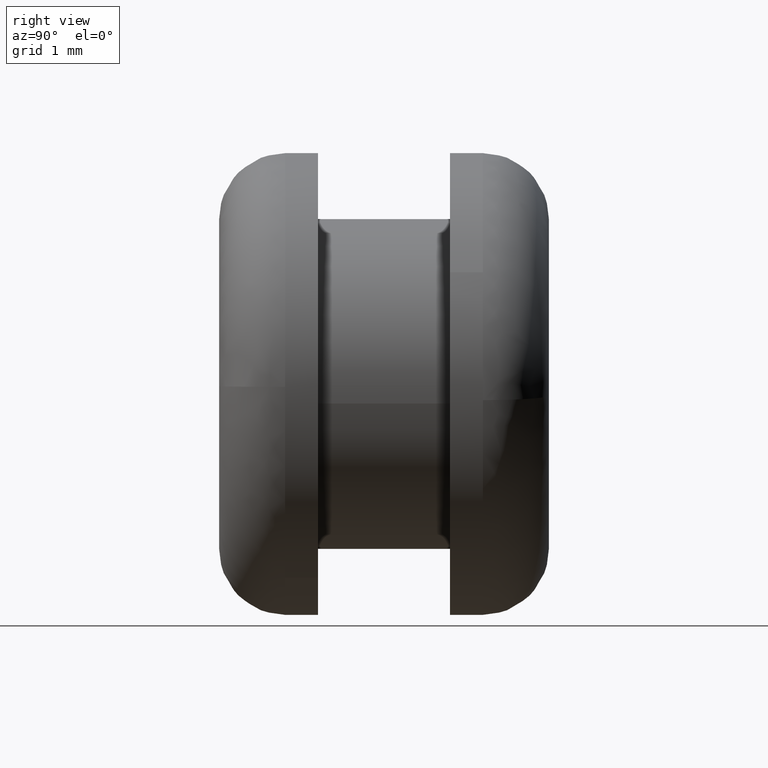
[diagram: clean part render]
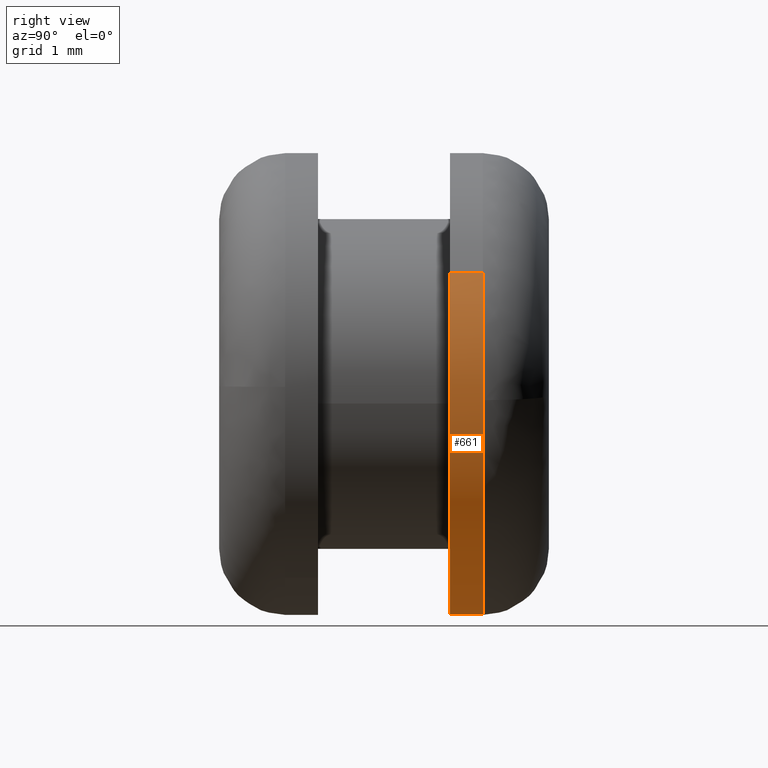
[diagram: same view with one face highlighted and labeled with its STEP entity id]
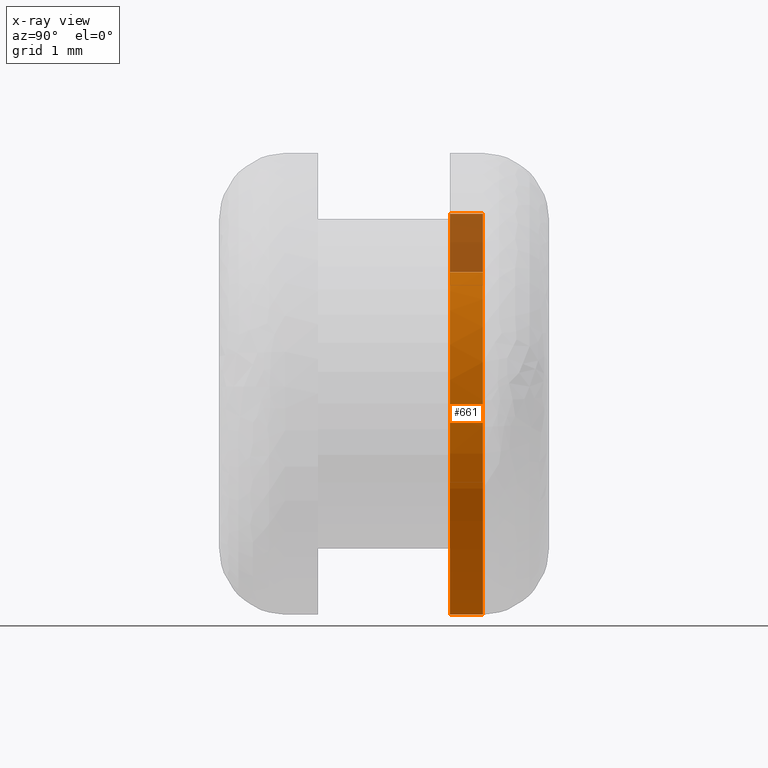
[diagram: x-ray of the same camera — body ghosted, the highlighted face saturated]
A machine part, right view. The second image highlights one B-rep face of the part: STEP entity #661.
The next image is the same camera in x-ray: the body ghosted, the highlighted face saturated — about 15% of this face is hidden behind the body in this view.
In plain terms, the highlighted face is a freeform B-spline surface patch.
Its self-contained STEP definition (entity closure, byte-faithful):
#464=CARTESIAN_POINT('',(3.062312809461116,3.999999043841613,1.694768496581680));
#465=VERTEX_POINT('',#464);
#481=CARTESIAN_POINT('',(-2.364565584249820,3.999999325511647,2.580470809324931));
#482=VERTEX_POINT('',#481);
#496=CARTESIAN_POINT('',(-2.364565588025771,3.500000000000000,2.580470805865530));
#497=VERTEX_POINT('',#496);
#498=CARTESIAN_POINT('',(-2.364565584249820,3.999999325511647,2.580470809324931));
#499=CARTESIAN_POINT('',(-2.364565588025771,3.500000000000000,2.580470805865530));
#500=QUASI_UNIFORM_CURVE('',1,(#498,#499),.UNSPECIFIED.,.F.,.U.);
#501=EDGE_CURVE('',#482,#497,#500,.T.);
#518=CARTESIAN_POINT('',(3.062312784765610,3.500000000000000,1.694768541205769));
#519=VERTEX_POINT('',#518);
#533=CARTESIAN_POINT('',(3.062312809461116,3.999999043841613,1.694768496581680));
#534=CARTESIAN_POINT('',(3.062312784765610,3.500000000000000,1.694768541205769));
#535=QUASI_UNIFORM_CURVE('',1,(#533,#534),.UNSPECIFIED.,.F.,.U.);
#536=EDGE_CURVE('',#465,#519,#535,.T.);
#541=CARTESIAN_POINT('',(-2.364565726654810,4.012500000000000,2.580470678835432));
#542=CARTESIAN_POINT('',(-4.945036405490243,4.012500000000000,0.215904952180622));
#543=CARTESIAN_POINT('',(-2.580470678835433,4.012500000000000,-2.364565726654811));
#544=CARTESIAN_POINT('',(-0.215904952180622,4.012500000000000,-4.945036405490244));
#545=CARTESIAN_POINT('',(2.364565726654810,4.012500000000000,-2.580470678835433));
#546=CARTESIAN_POINT('',(4.397434412072781,4.012500000000000,-0.717689729703126));
#547=CARTESIAN_POINT('',(3.062312496050955,4.012499999999999,1.694769062890327));
#548=CARTESIAN_POINT('',(-2.364565726654810,3.487187500000000,2.580470678835432));
#549=CARTESIAN_POINT('',(-4.945036405490243,3.487187500000001,0.215904952180622));
#550=CARTESIAN_POINT('',(-2.580470678835433,3.487187500000000,-2.364565726654811));
#551=CARTESIAN_POINT('',(-0.215904952180622,3.487187500000001,-4.945036405490244));
#552=CARTESIAN_POINT('',(2.364565726654810,3.487187500000000,-2.580470678835433));
#553=CARTESIAN_POINT('',(4.397434412072781,3.487187500000000,-0.717689729703126));
#554=CARTESIAN_POINT('',(3.062312496050955,3.487187500000000,1.694769062890327));
#562=(BOUNDED_SURFACE()B_SPLINE_SURFACE(2,1,((#541,#548),(#542,#549),(#543,#550),(#544,#551),(#545,#552),(#546,#553),(#547,#554)),.UNSPECIFIED.,.F.,.F.,.U.)B_SPLINE_SURFACE_WITH_KNOTS((3,2,2,3),(2,2),(0.0,5.798989873223329,11.597979746446660,16.469131239954251),(0.0,1.0),.UNSPECIFIED.)GEOMETRIC_REPRESENTATION_ITEM()RATIONAL_B_SPLINE_SURFACE(((1.0,1.0),(0.707106781186548,0.707106781186548),(1.0,1.0),(0.707106781186548,0.707106781186548),(1.0,1.0),(0.753969696196700,0.753969696196700),(0.921270302782944,0.921270302782944)))REPRESENTATION_ITEM('')SURFACE());
#563=CARTESIAN_POINT('',(3.491479914727528,3.999998564003359,-0.244065575284920));
#564=VERTEX_POINT('',#563);
#565=CARTESIAN_POINT('',(3.491479914727529,3.999998564003359,-0.244065575284920));
#566=CARTESIAN_POINT('',(3.499999999997884,3.999998587377032,-0.122181501472530));
#567=CARTESIAN_POINT('',(3.499999999997921,3.999998612441635,1.450815E-013));
#568=CARTESIAN_POINT('',(3.499999999998199,3.999998797870233,0.903901969456682));
#569=CARTESIAN_POINT('',(3.062312809461116,3.999999043841613,1.694768496581679));
#577=(BOUNDED_CURVE()B_SPLINE_CURVE(2,(#565,#566,#567,#568,#569),.UNSPECIFIED.,.F.,.U.)B_SPLINE_CURVE_WITH_KNOTS((3,2,3),(0.237833726198915,0.250000000000000,0.332484232055863),.UNSPECIFIED.)CURVE()GEOMETRIC_REPRESENTATION_ITEM()RATIONAL_B_SPLINE_CURVE((0.972879960279395,0.985746323621737,1.0,0.903363711087211,0.870495182812020))REPRESENTATION_ITEM(''));
#578=EDGE_CURVE('',#564,#465,#577,.T.);
#579=ORIENTED_EDGE('',*,*,#578,.T.);
#580=ORIENTED_EDGE('',*,*,#536,.T.);
#581=CARTESIAN_POINT('',(0.0,3.500000000000000,-3.500000000000000));
#582=VERTEX_POINT('',#581);
#583=CARTESIAN_POINT('',(0.0,3.500000000000000,-3.500000000000000));
#584=CARTESIAN_POINT('',(3.500000000000000,3.500000000000000,-3.500000000000001));
#585=CARTESIAN_POINT('',(3.500000000000000,3.500000000000000,-3.061516E-016));
#586=CARTESIAN_POINT('',(3.500000000000001,3.500000000000001,0.903902023860378));
#587=CARTESIAN_POINT('',(3.062312784765611,3.500000000000000,1.694768541205769));
#595=(BOUNDED_CURVE()B_SPLINE_CURVE(2,(#583,#584,#585,#586,#587),.UNSPECIFIED.,.F.,.U.)B_SPLINE_CURVE_WITH_KNOTS((3,2,3),(0.0,0.250000000000000,0.332484236540648),.UNSPECIFIED.)CURVE()GEOMETRIC_REPRESENTATION_ITEM()RATIONAL_B_SPLINE_CURVE((1.0,0.707106781186547,1.0,0.903363705832958,0.870495179237803))REPRESENTATION_ITEM(''));
#596=EDGE_CURVE('',#582,#519,#595,.T.);
#597=ORIENTED_EDGE('',*,*,#596,.F.);
#598=CARTESIAN_POINT('',(-2.364565588025771,3.500000000000000,2.580470805865530));
#599=CARTESIAN_POINT('',(-3.500000000000000,3.500000000000000,1.540037082553790));
#600=CARTESIAN_POINT('',(-3.500000000000000,3.500000000000000,-3.061516E-016));
#601=CARTESIAN_POINT('',(-3.500000000000000,3.500000000000000,-3.500000000000001));
#602=CARTESIAN_POINT('',(0.0,3.500000000000000,-3.500000000000000));
#610=(BOUNDED_CURVE()B_SPLINE_CURVE(2,(#598,#599,#600,#601,#602),.UNSPECIFIED.,.F.,.U.)B_SPLINE_CURVE_WITH_KNOTS((3,2,3),(0.618415192864190,0.750000000000000,1.0),.UNSPECIFIED.)CURVE()GEOMETRIC_REPRESENTATION_ITEM()RATIONAL_B_SPLINE_CURVE((0.853959782840026,0.845838809164181,1.0,0.707106781186547,1.0))REPRESENTATION_ITEM(''));
#611=EDGE_CURVE('',#497,#582,#610,.T.);
#612=ORIENTED_EDGE('',*,*,#611,.F.);
#613=ORIENTED_EDGE('',*,*,#501,.F.);
#614=CARTESIAN_POINT('',(-3.499723684239902,3.999998575309509,0.043978789780451));
#615=VERTEX_POINT('',#614);
#616=CARTESIAN_POINT('',(-2.364565584249820,3.999999325511646,2.580470809324931));
#617=CARTESIAN_POINT('',(-3.480701454495754,3.999998887317729,1.557720943603970));
#618=CARTESIAN_POINT('',(-3.499723684239902,3.999998575309509,0.043978789780451));
#626=(BOUNDED_CURVE()B_SPLINE_CURVE(2,(#616,#617,#618),.UNSPECIFIED.,.F.,.U.)B_SPLINE_CURVE_WITH_KNOTS((3,3),(0.618415192422474,0.747784414003748),.UNSPECIFIED.)CURVE()GEOMETRIC_REPRESENTATION_ITEM()RATIONAL_B_SPLINE_CURVE((0.853959782894549,0.845975547204501,0.994854567423138))REPRESENTATION_ITEM(''));
#627=EDGE_CURVE('',#482,#615,#626,.T.);
#628=ORIENTED_EDGE('',*,*,#627,.T.);
#629=CARTESIAN_POINT('',(0.0,4.0,-3.500000000000000));
#630=VERTEX_POINT('',#629);
#631=CARTESIAN_POINT('',(-3.499723684239902,3.999998575309509,0.043978789780451));
#632=CARTESIAN_POINT('',(-3.499999999997190,3.999998579729238,0.021990262926801));
#633=CARTESIAN_POINT('',(-3.499999999997199,3.999998584204854,-3.588039E-014));
#634=CARTESIAN_POINT('',(-3.499999999998608,3.999999296550100,-3.500000000000019));
#635=CARTESIAN_POINT('',(0.0,4.0,-3.500000000000000));
#643=(BOUNDED_CURVE()B_SPLINE_CURVE(2,(#631,#632,#633,#634,#635),.UNSPECIFIED.,.F.,.U.)B_SPLINE_CURVE_WITH_KNOTS((3,2,3),(0.747784414003748,0.750000000000000,1.0),.UNSPECIFIED.)CURVE()GEOMETRIC_REPRESENTATION_ITEM()RATIONAL_B_SPLINE_CURVE((0.994854567423138,0.997404279543999,1.0,0.707106781186547,1.0))REPRESENTATION_ITEM(''));
#644=EDGE_CURVE('',#615,#630,#643,.T.);
#645=ORIENTED_EDGE('',*,*,#644,.T.);
#646=CARTESIAN_POINT('',(0.0,4.0,-3.500000000000000));
#647=CARTESIAN_POINT('',(3.263879720007152,3.999999282001679,-3.499999999999925));
#648=CARTESIAN_POINT('',(3.491479914727529,3.999998564003359,-0.244065575284920));
#656=(BOUNDED_CURVE()B_SPLINE_CURVE(2,(#646,#647,#648),.UNSPECIFIED.,.F.,.U.)B_SPLINE_CURVE_WITH_KNOTS((3,3),(0.0,0.237833726198915),.UNSPECIFIED.)CURVE()GEOMETRIC_REPRESENTATION_ITEM()RATIONAL_B_SPLINE_CURVE((1.0,0.721360457564810,0.972879960279395))REPRESENTATION_ITEM(''));
#657=EDGE_CURVE('',#630,#564,#656,.T.);
#658=ORIENTED_EDGE('',*,*,#657,.T.);
#659=EDGE_LOOP('',(#579,#580,#597,#612,#613,#628,#645,#658));
#660=FACE_OUTER_BOUND('',#659,.T.);
#661=ADVANCED_FACE('',(#660),#562,.T.);